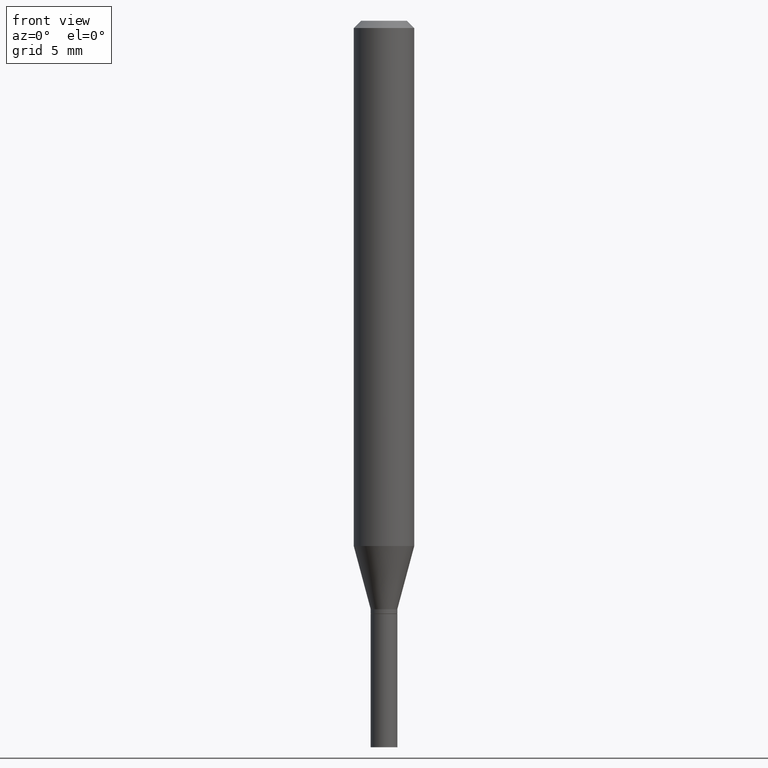
[diagram: clean part render]
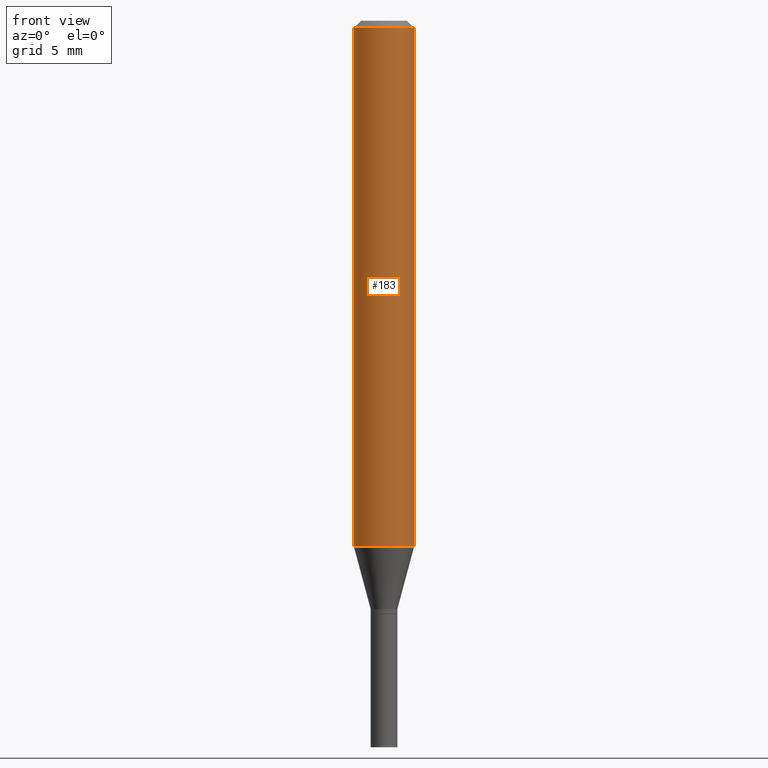
[diagram: same view with one face highlighted and labeled with its STEP entity id]
A machine part, front view. The second image highlights one B-rep face of the part: STEP entity #183.
In plain terms, the highlighted cylindrical surface (edge-blend (fillet) strip) has radius 1.5875 mm, axis along (-0, 0, 1).
Its self-contained STEP definition (entity closure, byte-faithful):
#52 = EDGE_CURVE ( 'NONE', #239, #113, #242, .T. ) ;
#64 = CARTESIAN_POINT ( 'NONE',  ( -0.06250000000000000000, -1.475140062909251703E-15, -0.01499999999999999944 ) ) ;
#68 = CARTESIAN_POINT ( 'NONE',  ( 0.06250000000000000000, -4.222521492791372833E-15, -1.084378221735089909 ) ) ;
#71 = CIRCLE ( 'NONE', #319, 0.06250000000000000000 ) ;
#74 = VERTEX_POINT ( 'NONE', #64 ) ;
#96 = DIRECTION ( 'NONE',  ( -2.445468806185136597E-29, 3.491481338843145583E-15, 1.000000000000000000 ) ) ;
#99 = DIRECTION ( 'NONE',  ( -2.445468806185136597E-29, 3.491481338843145583E-15, 1.000000000000000000 ) ) ;
#113 = VERTEX_POINT ( 'NONE', #68 ) ;
#116 = CARTESIAN_POINT ( 'NONE',  ( -0.06250000000000000000, -3.341997115585918942E-15, -1.084378221735089909 ) ) ;
#118 = CARTESIAN_POINT ( 'NONE',  ( 0.000000000000000000, 0.000000000000000000, 0.000000000000000000 ) ) ;
#165 = DIRECTION ( 'NONE',  ( -2.445468806185136877E-29, 3.491481338843145188E-15, 1.000000000000000000 ) ) ;
#172 = ORIENTED_EDGE ( 'NONE', *, *, #272, .T. ) ;
#183 = ADVANCED_FACE ( 'NONE', ( #276 ), #248, .T. ) ;
#199 = AXIS2_PLACEMENT_3D ( 'NONE', #118, #99, #200 ) ;
#200 = DIRECTION ( 'NONE',  ( 1.000000000000000000, -6.982962677686266711E-15, 4.876176775795935793E-29 ) ) ;
#218 = EDGE_CURVE ( 'NONE', #239, #74, #397, .T. ) ;
#239 = VERTEX_POINT ( 'NONE', #116 ) ;
#242 = CIRCLE ( 'NONE', #438, 0.06250000000000000000 ) ;
#244 = DIRECTION ( 'NONE',  ( 1.000000000000000000, -6.982962677686266711E-15, 0.000000000000000000 ) ) ;
#248 = CYLINDRICAL_SURFACE ( 'NONE', #199, 0.06250000000000000000 ) ;
#272 = EDGE_CURVE ( 'NONE', #113, #306, #327, .T. ) ;
#276 = FACE_OUTER_BOUND ( 'NONE', #406, .T. ) ;
#277 = VECTOR ( 'NONE', #165, 39.37007874015748143 ) ;
#278 = ORIENTED_EDGE ( 'NONE', *, *, #218, .F. ) ;
#280 = ORIENTED_EDGE ( 'NONE', *, *, #52, .T. ) ;
#286 = DIRECTION ( 'NONE',  ( -2.445468806185136597E-29, 3.491481338843145583E-15, 1.000000000000000000 ) ) ;
#291 = CARTESIAN_POINT ( 'NONE',  ( 2.651813115359671942E-29, -3.786086325435981164E-15, -1.084378221735089909 ) ) ;
#306 = VERTEX_POINT ( 'NONE', #448 ) ;
#308 = ORIENTED_EDGE ( 'NONE', *, *, #433, .F. ) ;
#312 = CARTESIAN_POINT ( 'NONE',  ( 3.668203209277705088E-31, -5.237222008264718399E-17, -0.01499999999999999944 ) ) ;
#319 = AXIS2_PLACEMENT_3D ( 'NONE', #312, #96, #244 ) ;
#327 = LINE ( 'NONE', #346, #277 ) ;
#346 = CARTESIAN_POINT ( 'NONE',  ( 0.06250000000000000000, -4.364351673553916694E-16, 3.047610484872459871E-30 ) ) ;
#397 = LINE ( 'NONE', #436, #450 ) ;
#400 = DIRECTION ( 'NONE',  ( -2.445468806185136877E-29, 3.491481338843145188E-15, 1.000000000000000000 ) ) ;
#406 = EDGE_LOOP ( 'NONE', ( #278, #280, #172, #308 ) ) ;
#428 = DIRECTION ( 'NONE',  ( 1.000000000000000000, -6.982962677686262766E-15, 0.000000000000000000 ) ) ;
#433 = EDGE_CURVE ( 'NONE', #74, #306, #71, .T. ) ;
#436 = CARTESIAN_POINT ( 'NONE',  ( -0.06250000000000000000, 4.440892098500626162E-16, -3.074334431409316114E-30 ) ) ;
#438 = AXIS2_PLACEMENT_3D ( 'NONE', #291, #286, #428 ) ;
#448 = CARTESIAN_POINT ( 'NONE',  ( 0.06250000000000000000, -4.888073874380388472E-16, -0.01499999999999999944 ) ) ;
#450 = VECTOR ( 'NONE', #400, 39.37007874015748143 ) ;